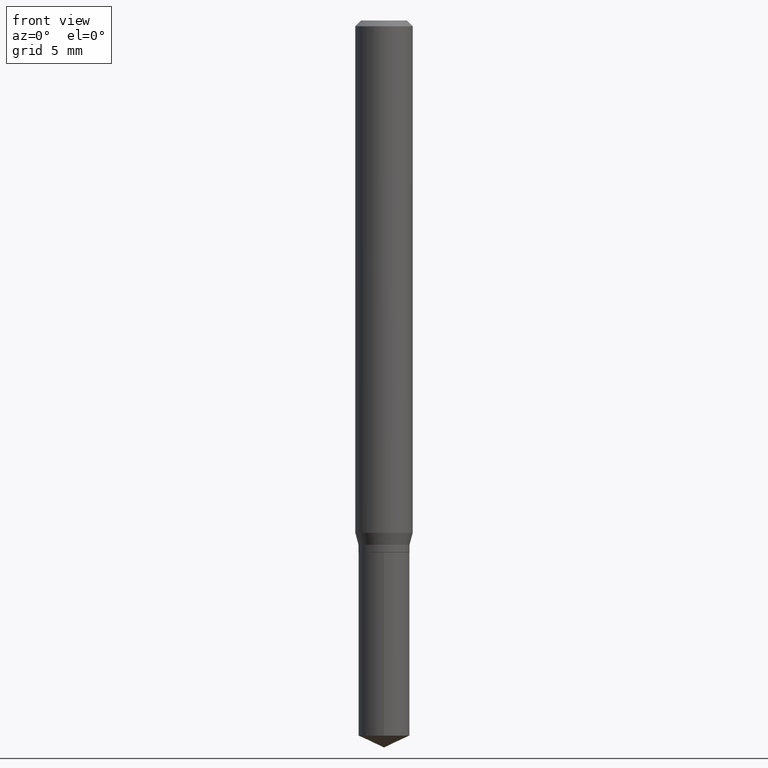
[diagram: clean part render]
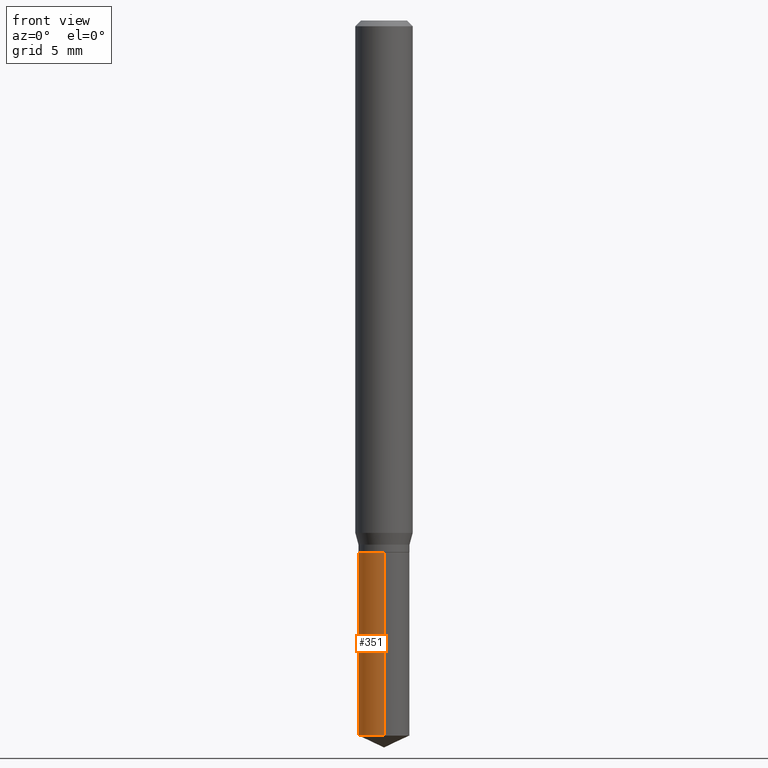
[diagram: same view with one face highlighted and labeled with its STEP entity id]
A machine part, front view. The second image highlights one B-rep face of the part: STEP entity #351.
In plain terms, the highlighted cylindrical surface (edge-blend (fillet) strip) has radius 1.3348 mm, axis along (-0, 0, 1).
Its self-contained STEP definition (entity closure, byte-faithful):
#19 = DIRECTION ( 'NONE',  ( -2.445458899330790108E-29, 3.491495526022433599E-15, 1.000000000000000000 ) ) ;
#21 = VERTEX_POINT ( 'NONE', #217 ) ;
#22 = CARTESIAN_POINT ( 'NONE',  ( -3.669546887123774197E-16, -0.05255000000000515509, -1.471595532563954478 ) ) ;
#79 = CIRCLE ( 'NONE', #326, 0.05254999999999999949 ) ;
#80 = CARTESIAN_POINT ( 'NONE',  ( 3.598737234376038977E-29, -5.138053690193917852E-15, -1.471595532563954700 ) ) ;
#90 = VERTEX_POINT ( 'NONE', #456 ) ;
#125 = CYLINDRICAL_SURFACE ( 'NONE', #181, 0.05254999999999999949 ) ;
#129 = LINE ( 'NONE', #170, #388 ) ;
#167 = EDGE_CURVE ( 'NONE', #21, #311, #250, .T. ) ;
#170 = CARTESIAN_POINT ( 'NONE',  ( -3.669546887123864916E-16, -0.05255000000000382282, -1.094499999999999806 ) ) ;
#176 = ORIENTED_EDGE ( 'NONE', *, *, #240, .T. ) ;
#178 = DIRECTION ( 'NONE',  ( -2.445458899330790108E-29, 3.491495526022433599E-15, 1.000000000000000000 ) ) ;
#181 = AXIS2_PLACEMENT_3D ( 'NONE', #470, #286, #251 ) ;
#199 = AXIS2_PLACEMENT_3D ( 'NONE', #80, #426, #457 ) ;
#207 = EDGE_CURVE ( 'NONE', #21, #280, #354, .T. ) ;
#217 = CARTESIAN_POINT ( 'NONE',  ( 3.733902076419686358E-16, 0.05254999999999486471, -1.471595532563955144 ) ) ;
#239 = CARTESIAN_POINT ( 'NONE',  ( 3.733902076419593174E-16, 0.05254999999999616922, -1.094500000000000028 ) ) ;
#240 = EDGE_CURVE ( 'NONE', #311, #90, #129, .T. ) ;
#250 = CIRCLE ( 'NONE', #199, 0.05254999999999999949 ) ;
#251 = DIRECTION ( 'NONE',  ( -6.982962677686265922E-15, -1.000000000000000000, 2.599284484932695853E-15 ) ) ;
#279 = CARTESIAN_POINT ( 'NONE',  ( 3.733902076419685865E-16, 0.05254999999999616922, -1.094500000000000028 ) ) ;
#280 = VERTEX_POINT ( 'NONE', #279 ) ;
#286 = DIRECTION ( 'NONE',  ( -2.445458899330790108E-29, 3.491495526022433205E-15, 1.000000000000000000 ) ) ;
#297 = DIRECTION ( 'NONE',  ( -2.445458899330790108E-29, 3.491495526022433205E-15, 1.000000000000000000 ) ) ;
#311 = VERTEX_POINT ( 'NONE', #22 ) ;
#326 = AXIS2_PLACEMENT_3D ( 'NONE', #335, #297, #487 ) ;
#335 = CARTESIAN_POINT ( 'NONE',  ( 2.676565608369631794E-29, -3.821426325363822773E-15, -1.094499999999999806 ) ) ;
#339 = VECTOR ( 'NONE', #178, 39.37007874015748143 ) ;
#351 = ADVANCED_FACE ( 'NONE', ( #465 ), #125, .T. ) ;
#353 = ORIENTED_EDGE ( 'NONE', *, *, #486, .F. ) ;
#354 = LINE ( 'NONE', #239, #339 ) ;
#388 = VECTOR ( 'NONE', #19, 39.37007874015748143 ) ;
#400 = ORIENTED_EDGE ( 'NONE', *, *, #167, .T. ) ;
#417 = EDGE_LOOP ( 'NONE', ( #445, #400, #176, #353 ) ) ;
#426 = DIRECTION ( 'NONE',  ( -2.445458899330790108E-29, 3.491495526022433205E-15, 1.000000000000000000 ) ) ;
#445 = ORIENTED_EDGE ( 'NONE', *, *, #207, .F. ) ;
#456 = CARTESIAN_POINT ( 'NONE',  ( -3.669546887123864916E-16, -0.05255000000000382282, -1.094499999999999806 ) ) ;
#457 = DIRECTION ( 'NONE',  ( -6.982962677686265922E-15, -1.000000000000000000, 5.198568969865391706E-15 ) ) ;
#465 = FACE_OUTER_BOUND ( 'NONE', #417, .T. ) ;
#470 = CARTESIAN_POINT ( 'NONE',  ( 2.676565608369631794E-29, -3.821426325363822773E-15, -1.094499999999999806 ) ) ;
#486 = EDGE_CURVE ( 'NONE', #280, #90, #79, .T. ) ;
#487 = DIRECTION ( 'NONE',  ( -6.982962677686265922E-15, -1.000000000000000000, 2.599284484932695853E-15 ) ) ;